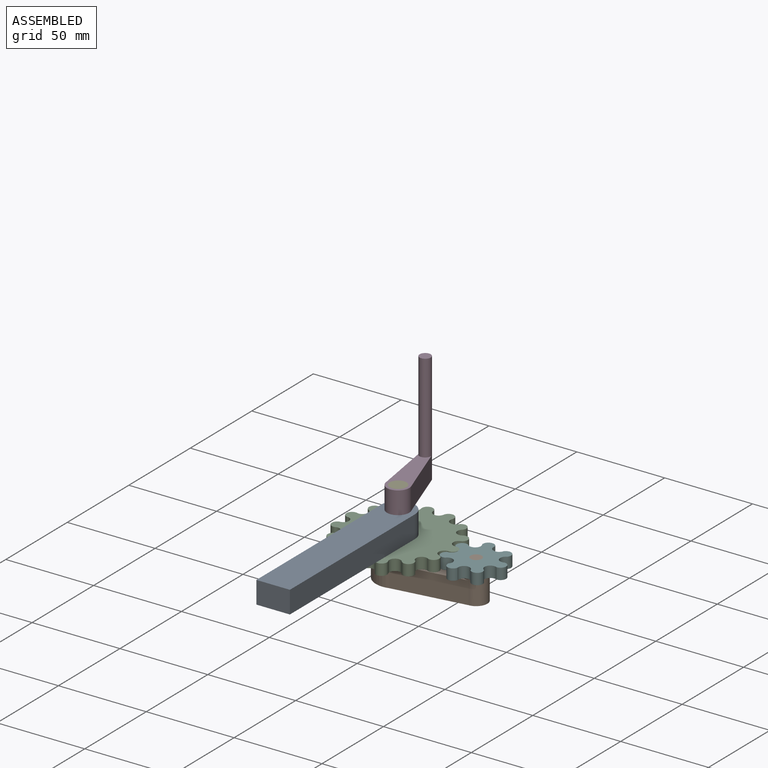
[diagram: assembled view]
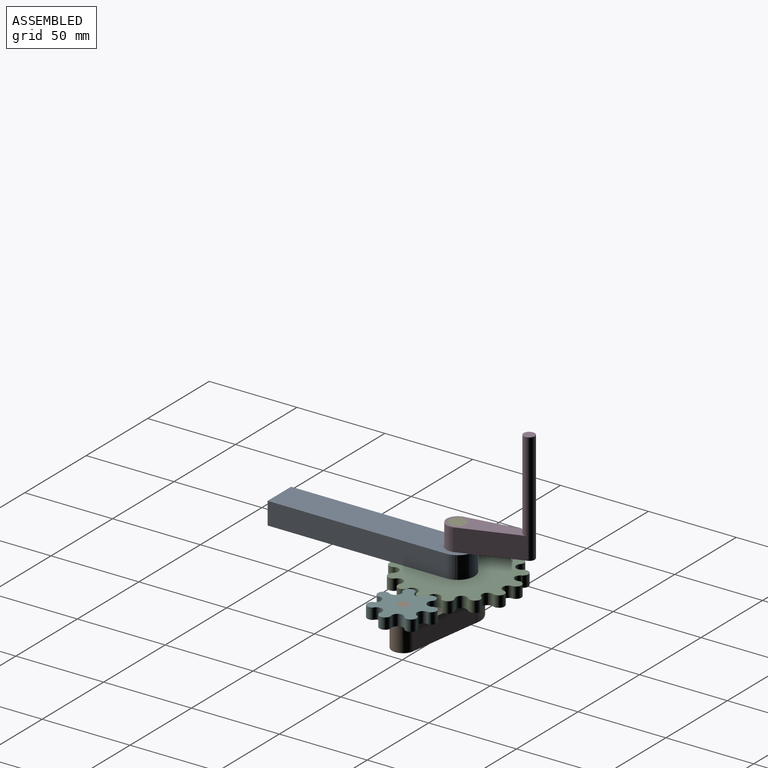
[diagram: assembled view, second angle]
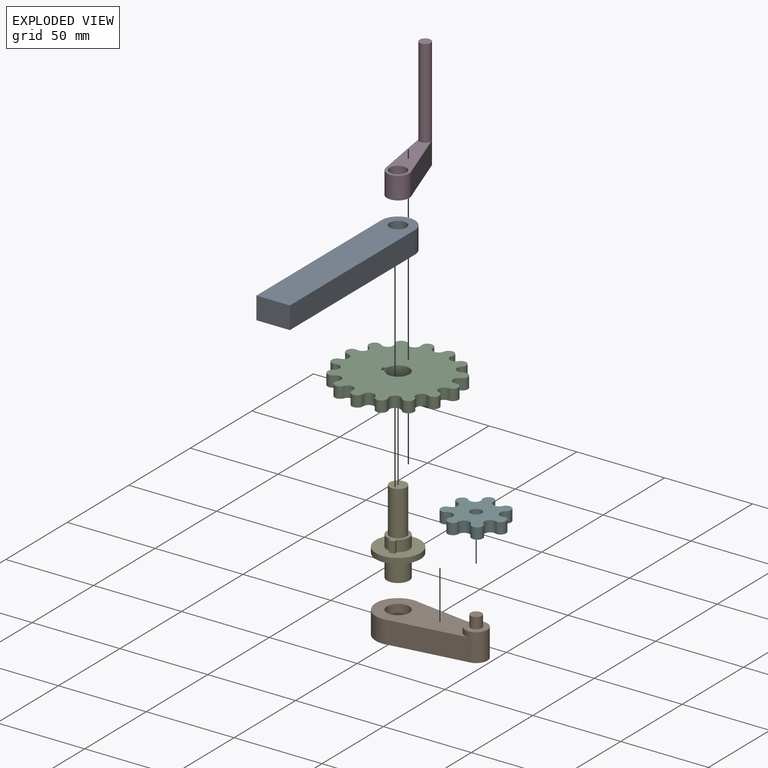
[diagram: exploded view]
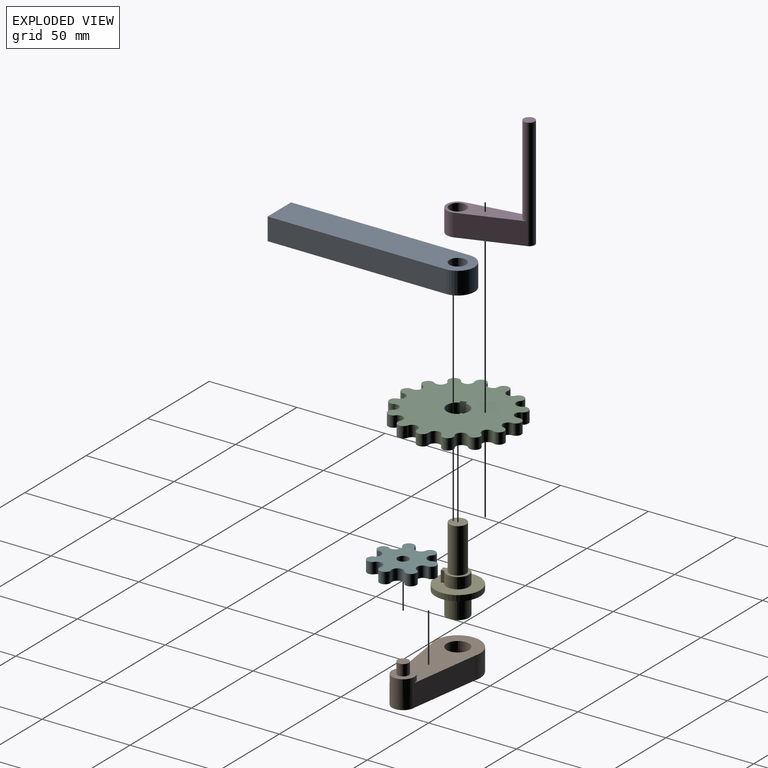
[diagram: exploded view, second angle]
ASSEMBLY  parts=6 mates=5
PART A: 7 faces, bbox 19.1x111.1x12.7 mm
  f0: cylinder r=9.53mm len=19.05mm, axis (0,0,-1), area 380mm2, adj f1,f3,f4,f5
  f1: plane 101.6x12.7mm, normal (-1,0,0), area 1290.3mm2, adj f0,f2,f4,f5
  f2: plane 19.05x12.7mm, normal (0,-1,0), area 241.9mm2, adj f1,f3,f4,f5
  f3: plane 101.6x12.7mm, normal (1,0,0), area 1290.3mm2, adj f0,f2,f4,f5
  f4: plane 111.13x19.05mm, normal (0,0,1), area 2006.7mm2, adj f0,f1,f2,f3,f6
  f5: plane 111.13x19.05mm, normal (0,0,-1), area 2006.7mm2, adj f0,f1,f2,f3,f6
  f6: cylinder r=4.76mm len=12.7mm, axis (0,0,1), area 380mm2, adj f4,f5
PART B: 10 faces, bbox 63.5x25.4x22.2 mm
  f0: cylinder r=12.7mm len=25.4mm, axis (0,0,-1), area 598.3mm2, adj f1,f3,f5,f6
  f1: plane 40.89x12.7mm, normal (0.14,-0.99,0), area 524.6mm2, adj f0,f2,f5,f6
  f2: cylinder r=6.35mm len=15.88mm, axis (0,0,-1), area 380mm2, adj f1,f3,f5,f6,f7
  f3: plane 40.89x12.7mm, normal (0.14,0.99,0), area 524.6mm2, adj f0,f2,f5,f6
  f4: cylinder r=6.35mm len=12.7mm, axis (0,0,-1), area 506.7mm2, adj f5,f6
  f5: plane 57.15x25.4mm, normal (0,0,1), area 910.7mm2, adj f0,f1,f2,f3,f4
  f6: plane 63.5x25.4mm, normal (0,0,-1), area 1037.4mm2, adj f0,f1,f2,f3,f4
  f7: plane 12.7x12.7mm, normal (0,0,1), area 95mm2, adj f2,f9
  f8: plane 6.35x6.35mm, normal (0,0,1), area 31.7mm2, adj f9
  f9: cylinder r=3.17mm len=6.35mm, axis (0,0,-1), area 126.7mm2, adj f7,f8
PART C: 36 faces, bbox 66.6x66.3x6.4 mm
  f0: cylinder r=3.2mm len=6.35mm, axis (0,0,-1), area 63.8mm2, adj f1,f29,f30,f31
  f1: cylinder r=3.17mm len=6.35mm, axis (0,0,-1), area 63.3mm2, adj f0,f2,f30,f31
  f2: cylinder r=3.2mm len=6.35mm, axis (0,0,-1), area 63.8mm2, adj f1,f3,f30,f31
  f3: cylinder r=3.17mm len=6.35mm, axis (0,0,-1), area 63.3mm2, adj f2,f4,f30,f31
  f4: cylinder r=3.2mm len=6.35mm, axis (0,0,-1), area 63.8mm2, adj f3,f5,f30,f31
  f5: cylinder r=3.17mm len=6.35mm, axis (0,0,-1), area 63.3mm2, adj f4,f6,f30,f31
  f6: cylinder r=3.2mm len=6.35mm, axis (0,0,-1), area 63.8mm2, adj f5,f7,f30,f31
  f7: cylinder r=3.17mm len=6.35mm, axis (0,0,-1), area 63.3mm2, adj f6,f8,f30,f31
  f8: cylinder r=3.2mm len=6.38mm, axis (0,0,-1), area 63.8mm2, adj f7,f9,f30,f31
  f9: cylinder r=3.17mm len=6.35mm, axis (0,0,-1), area 63.3mm2, adj f8,f10,f30,f31
  f10: cylinder r=3.2mm len=6.35mm, axis (0,0,-1), area 63.8mm2, adj f9,f11,f30,f31
  f11: cylinder r=3.17mm len=6.35mm, axis (0,0,-1), area 63.3mm2, adj f10,f12,f30,f31
  f12: cylinder r=3.2mm len=6.35mm, axis (0,0,-1), area 63.8mm2, adj f11,f13,f30,f31
  f13: cylinder r=3.17mm len=6.35mm, axis (0,0,-1), area 63.3mm2, adj f12,f14,f30,f31
  f14: cylinder r=3.2mm len=6.35mm, axis (0,0,-1), area 63.8mm2, adj f13,f15,f30,f31
  f15: cylinder r=3.17mm len=6.35mm, axis (0,0,-1), area 63.3mm2, adj f14,f16,f30,f31
  f16: cylinder r=3.2mm len=6.39mm, axis (0,0,-1), area 63.8mm2, adj f15,f17,f30,f31
  f17: cylinder r=3.17mm len=6.35mm, axis (0,0,-1), area 63.3mm2, adj f16,f18,f30,f31
  f18: cylinder r=3.2mm len=6.35mm, axis (0,0,-1), area 63.8mm2, adj f17,f19,f30,f31
  f19: cylinder r=3.17mm len=6.35mm, axis (0,0,-1), area 63.3mm2, adj f18,f20,f30,f31
  f20: cylinder r=3.2mm len=6.35mm, axis (0,0,-1), area 63.8mm2, adj f19,f21,f30,f31
  f21: cylinder r=3.17mm len=6.35mm, axis (0,0,-1), area 63.3mm2, adj f20,f22,f30,f31
  f22: cylinder r=3.2mm len=6.35mm, axis (0,0,-1), area 63.8mm2, adj f21,f23,f30,f31
  f23: cylinder r=3.17mm len=6.35mm, axis (0,0,-1), area 63.3mm2, adj f22,f24,f30,f31
  f24: cylinder r=3.2mm len=6.38mm, axis (0,0,-1), area 63.8mm2, adj f23,f25,f30,f31
  f25: cylinder r=3.17mm len=6.35mm, axis (0,0,-1), area 63.3mm2, adj f24,f26,f30,f31
  f26: cylinder r=3.2mm len=6.35mm, axis (0,0,-1), area 63.8mm2, adj f25,f27,f30,f31
  f27: cylinder r=3.17mm len=6.35mm, axis (0,0,-1), area 63.3mm2, adj f26,f28,f30,f31
  f28: cylinder r=3.2mm len=6.35mm, axis (0,0,-1), area 63.8mm2, adj f27,f29,f30,f31
  f29: cylinder r=3.17mm len=6.35mm, axis (0,0,-1), area 63.3mm2, adj f0,f28,f30,f31
  f30: plane 66.65x66.32mm, normal (0,0,1), area 2762.2mm2, adj f0,f1,f2,f3,f4,f5,f6,f7
  f31: plane 66.65x66.32mm, normal (0,0,-1), area 2762.2mm2, adj f0,f1,f2,f3,f4,f5,f6,f7
  f32: plane 6.35x1.79mm, normal (1,0,0), area 11.4mm2, adj f30,f31,f33,f35
  f33: cylinder r=6.35mm len=12.7mm, axis (0,0,1), area 233mm2, adj f30,f31,f32,f34
  f34: plane 6.35x1.79mm, normal (-1,0,0), area 11.4mm2, adj f30,f31,f33,f35
  f35: plane 6.35x3.18mm, normal (0,-1,0), area 20.2mm2, adj f30,f31,f32,f34
PART D: 8 faces, bbox 12.7x45.1x63.5 mm
  f0: plane 35.57x12.7mm, normal (1,-0.09,0), area 453.5mm2, adj f1,f3,f5,f6
  f1: cylinder r=6.35mm len=12.7mm, axis (0,0,-1), area 253.4mm2, adj f0,f2,f5,f6
  f2: plane 35.57x12.7mm, normal (-1,-0.09,0), area 453.5mm2, adj f1,f3,f5,f6
  f3: cylinder r=3.17mm len=63.5mm, axis (0,0,-1), area 1140.1mm2, adj f0,f2,f5,f6,f7
  f4: cylinder r=4.76mm len=12.7mm, axis (0,0,-1), area 380mm2, adj f5,f6
  f5: plane 41.92x12.7mm, normal (0,0,1), area 315mm2, adj f0,f1,f2,f3,f4
  f6: plane 45.09x12.7mm, normal (0,0,-1), area 346.7mm2, adj f0,f1,f2,f3,f4
  f7: plane 6.35x6.35mm, normal (0,0,1), area 31.7mm2, adj f3
PART E: 12 faces, bbox 25.4x25.4x47.6 mm
  f0: cylinder r=6.35mm len=12.7mm, axis (0,0,-1), area 233mm2, adj f1,f3,f4,f5
  f1: plane 6.35x1.79mm, normal (1,0,0), area 11.4mm2, adj f0,f2,f4,f5
  f2: plane 6.35x3.18mm, normal (0,1,0), area 20.2mm2, adj f1,f3,f4,f5
  f3: plane 6.35x1.79mm, normal (-1,0,0), area 11.4mm2, adj f0,f2,f4,f5
  f4: plane 14.29x12.7mm, normal (0,0,1), area 60.7mm2, adj f0,f1,f2,f3,f8
  f5: plane 25.4x25.4mm, normal (0,0,1), area 374.8mm2, adj f0,f1,f2,f3,f6
  f6: cylinder r=12.7mm len=25.4mm, axis (0,0,1), area 253.4mm2, adj f5,f7
  f7: plane 25.4x25.4mm, normal (0,0,-1), area 380mm2, adj f6,f10
  f8: cylinder r=4.76mm len=25.4mm, axis (0,0,-1), area 760.1mm2, adj f4,f9
  f9: plane 9.53x9.53mm, normal (0,0,1), area 71.3mm2, adj f8
  f10: cylinder r=6.35mm len=12.7mm, axis (0,0,1), area 506.7mm2, adj f7,f11
  f11: plane 12.7x12.7mm, normal (0,0,-1), area 126.7mm2, adj f10
PART F: 17 faces, bbox 33.9x33.2x6.4 mm
  f0: cylinder r=3.28mm len=6.35mm, axis (0,0,-1), area 65.4mm2, adj f1,f13,f15,f16
  f1: cylinder r=3.17mm len=6.35mm, axis (0,0,-1), area 63.3mm2, adj f0,f2,f15,f16
  f2: cylinder r=3.28mm len=6.35mm, axis (0,0,-1), area 65.4mm2, adj f1,f3,f15,f16
  f3: cylinder r=3.17mm len=6.35mm, axis (0,0,-1), area 63.3mm2, adj f2,f4,f15,f16
  f4: cylinder r=3.28mm len=6.47mm, axis (0,0,-1), area 65.4mm2, adj f3,f5,f15,f16
  f5: cylinder r=3.17mm len=6.35mm, axis (0,0,-1), area 63.3mm2, adj f4,f6,f15,f16
  f6: cylinder r=3.28mm len=6.35mm, axis (0,0,-1), area 65.4mm2, adj f5,f7,f15,f16
  f7: cylinder r=3.17mm len=6.35mm, axis (0,0,-1), area 63.3mm2, adj f6,f8,f15,f16
  f8: cylinder r=3.28mm len=6.56mm, axis (0,0,-1), area 65.4mm2, adj f7,f9,f15,f16
  f9: cylinder r=3.17mm len=6.35mm, axis (0,0,-1), area 63.3mm2, adj f8,f10,f15,f16
  f10: cylinder r=3.28mm len=6.35mm, axis (0,0,-1), area 65.4mm2, adj f9,f11,f15,f16
  f11: cylinder r=3.17mm len=6.35mm, axis (0,0,-1), area 63.3mm2, adj f10,f12,f15,f16
  f12: cylinder r=3.28mm len=6.47mm, axis (0,0,-1), area 65.4mm2, adj f11,f13,f15,f16
  f13: cylinder r=3.17mm len=6.35mm, axis (0,0,-1), area 63.3mm2, adj f0,f12,f15,f16
  f14: cylinder r=3.17mm len=6.35mm, axis (0,0,-1), area 126.7mm2, adj f15,f16
  f15: plane 33.94x33.24mm, normal (0,0,1), area 599.6mm2, adj f0,f1,f2,f3,f4,f5,f6,f7
  f16: plane 33.94x33.24mm, normal (0,0,-1), area 599.6mm2, adj f0,f1,f2,f3,f4,f5,f6,f7
PLACE A t=(52.41,32.18,-27.63)mm fixed
PLACE B rot(axis=(0.15,-0.25,0.96),0deg) t=(-176.19,32.18,-49.86)mm
PLACE C rot(axis=(0,0,1),104.2deg) t=(-49.19,32.18,-33.98)mm
PLACE D rot(axis=(0,0,-1),165.8deg) t=(-188.92,-3.17,-14.93)mm
PLACE E rot(axis=(0,0,-1),165.8deg) t=(-107.55,17.41,-33.98)mm
PLACE F rot(axis=(0,0,1),11.2deg) t=(-77.54,17.71,-33.98)mm
MATE fastened D.f4 <-> E.f0  axis (0,0,-1) through (-49.19,32.18,-2.23)mm
MATE revolute F.f14 <-> B.f9  axis (0,0,1) through (-4.74,32.18,-27.63)mm
MATE revolute E.f0 <-> B.f0  axis (0,0,-1) through (-49.19,32.18,-49.86)mm
MATE revolute E.f0 <-> A.f0  axis (0,0,-1) through (-49.19,32.18,-27.63)mm
MATE fastened C.f33 <-> E.f0  axis (0,0,1) through (-49.19,32.18,-27.63)mm
